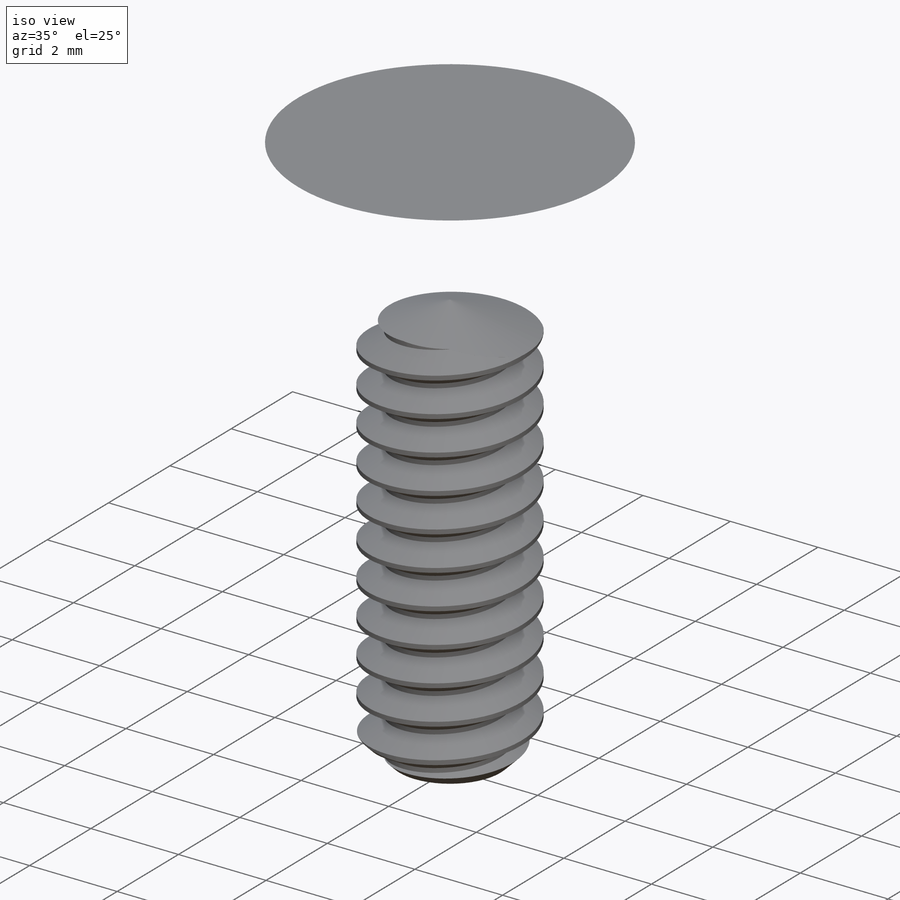
[diagram: iso view]
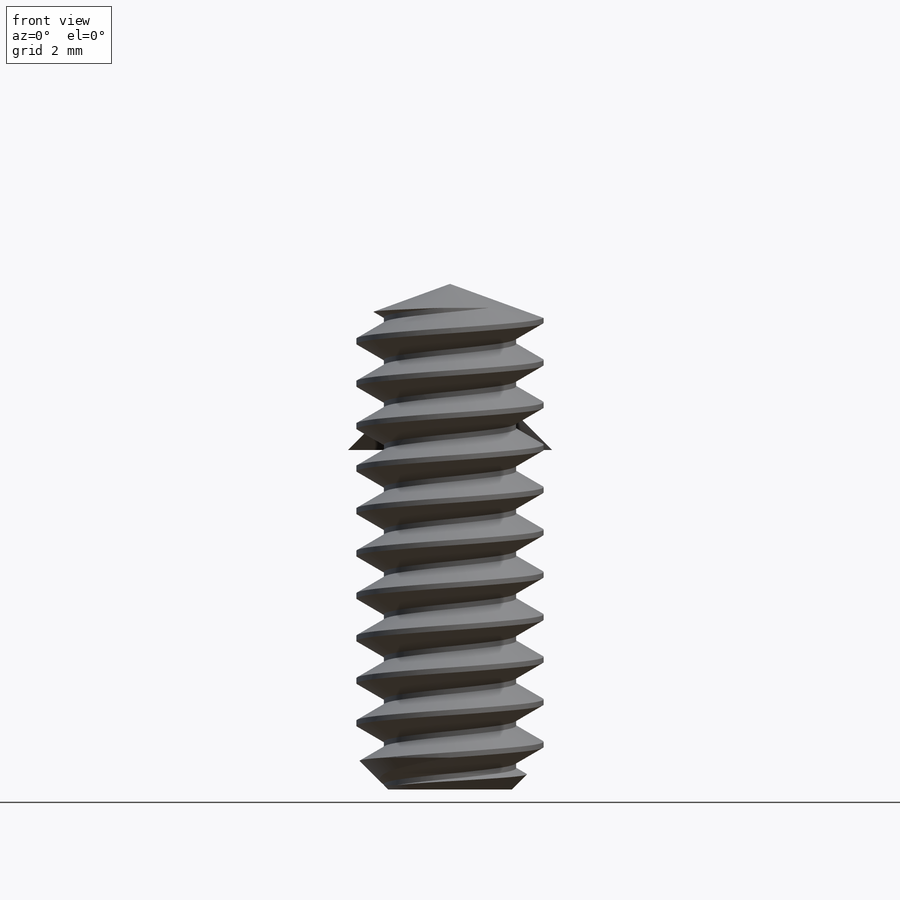
[diagram: front view]
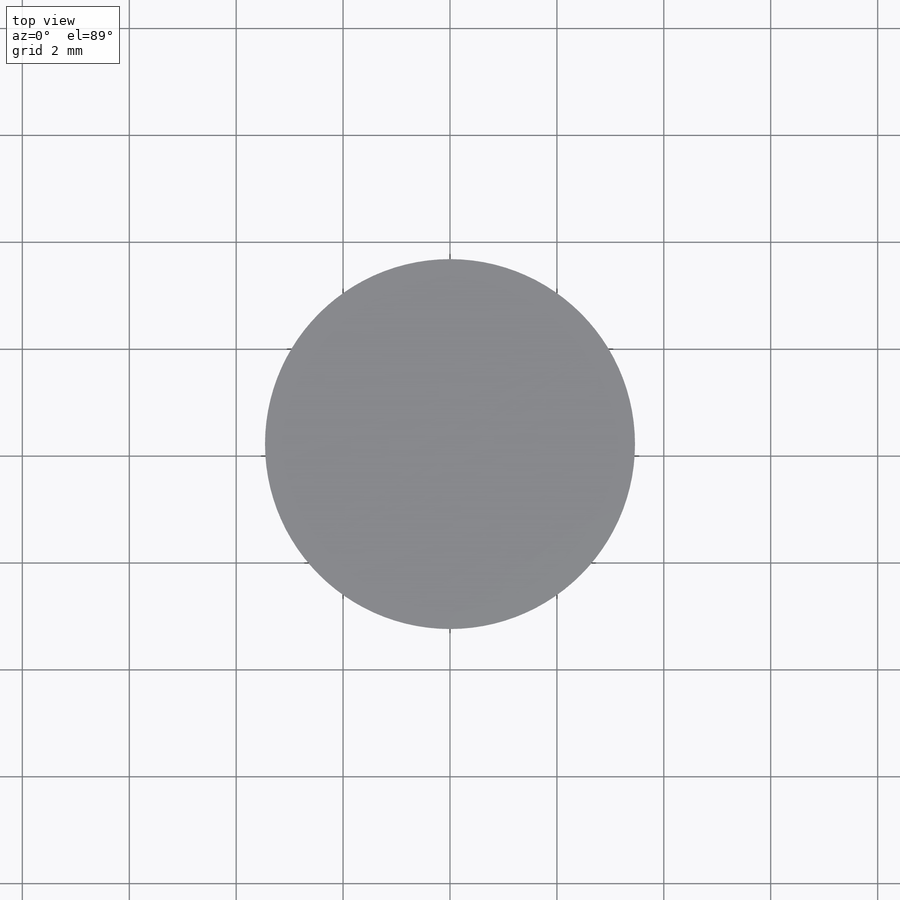
[diagram: top view]
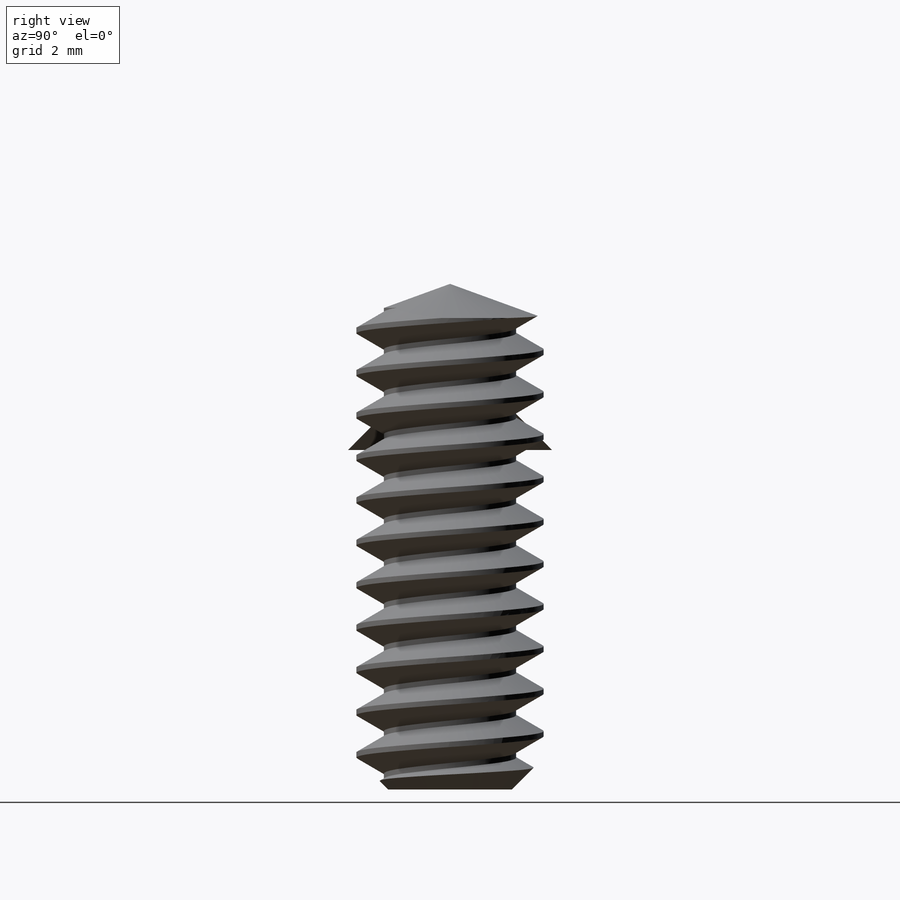
[diagram: right view]
SOLIDWORKS PART (.sldprt)
format: sldprt  version: not decoded by parser v0  size: 934,400 bytes
history: native  units: mm
features: sketch x7, revolve x3, boolean_combine x2, material x1, helix x1, chamfer x1, sweep x1, move_body x1, cut_revolve x1 (+15 scaffold rows collapsed)
feature tree (33):
  scaffold x15  (default folders/planes/origin — collapsed)
  material  "Material <not specified>"
  sketch  "Sketch1"  dims[c1.B Wd.=11.1125mm c1.C Ht.=6.35mm c1.A Lg.=~34.164362mm c1.Dia=~15.71815mm c1.D1=33.528mm c1.Core ht.=16.764mm c1.D3=~7.901135mm c2.D3=70.0deg c2.D4=~0.70104mm c2.Dia=3.5052mm c2.D2=~1.190625mm c2.A Ht.=6.35mm c2.Core Ht.=16.764mm c2.D5=3.3528mm c2.D1=2.0955mm]
  revolve  "Revolve1"  Angle=360deg
  sketch  "Sketch3"
  revolve  "Revolve2"  Angle=360deg
  sketch  "Sketch4"
  revolve  "Revolve3"  Angle=360deg
  sketch  "Sketch6"  dims[D1=0.0mm]
  helix  "Helix/Spiral1"  Pitch=15.24mm
  sketch  "Sketch7"  dims[c1.D1=~1.615597mm c2.D1=60.0deg c2.D2=~0.099219mm c2.D3=~0.396875mm]
  chamfer  "Chamfer1"  Distance=0.595313mm Angle=45deg
  sweep  "Cut-Sweep1"
  move_body  "Body-Move/Copy1"
  boolean_combine  "Combine1"
  sketch  "Sketch9"  dims[D1=~0.15875mm]
  cut_revolve  "Cut-Revolve1"  Angle=360deg
  boolean_combine  "Combine2"
  sketch  "Sketch8"  dims[D1=~1.984375mm]
decode coverage: 11 of 17 modeling features carry decoded parameters
note: ~ marks probable driven/reference dimensions
note: suppression state not decoded; provenance and decode notes live in map.json
